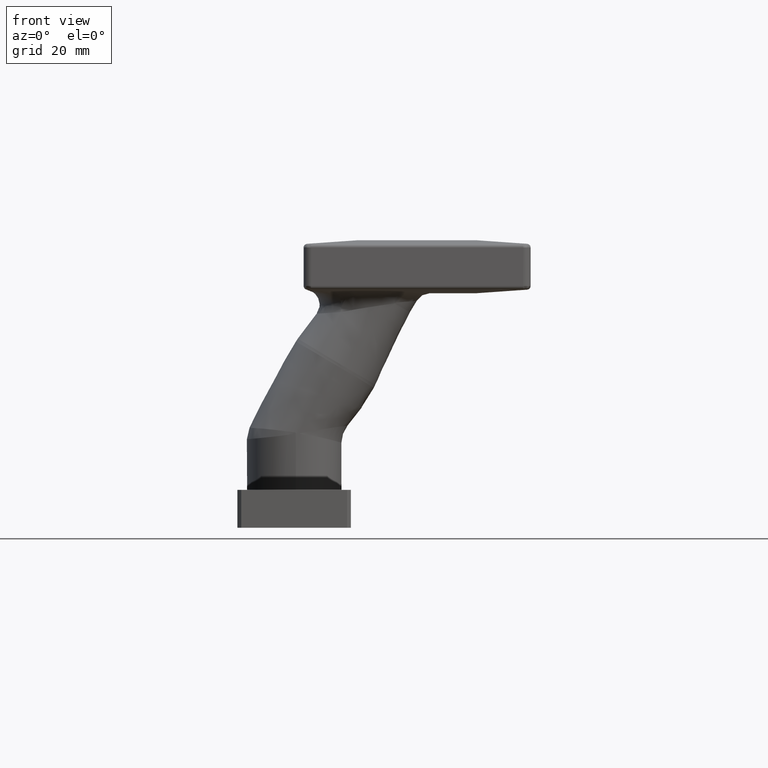
[diagram: clean part render]
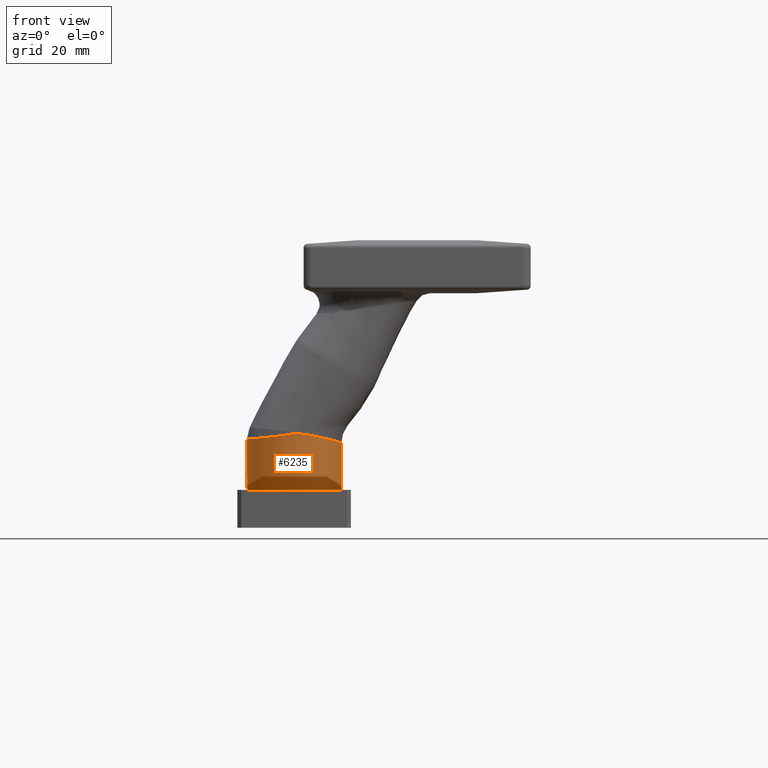
[diagram: same view with one face highlighted and labeled with its STEP entity id]
A machine part, front view. The second image highlights one B-rep face of the part: STEP entity #6235.
In plain terms, the highlighted cylindrical surface (bore or boss wall) has radius 12.5 mm, axis along (-0, -0, -1).
Its self-contained STEP definition (entity closure, byte-faithful):
#37 = CARTESIAN_POINT ( 'NONE',  ( 0.4394221528305361502, 12.49269222976936078, 14.96888034125928080 ) ) ;
#75 = CARTESIAN_POINT ( 'NONE',  ( -11.34737546167716005, -5.259853496294824460, 13.49994828489715282 ) ) ;
#116 = CARTESIAN_POINT ( 'NONE',  ( 0.3362026904691595708, 12.49590457310970493, 14.94438552654743546 ) ) ;
#169 = CARTESIAN_POINT ( 'NONE',  ( -6.960880962747370226, 10.39104581113343961, 13.86351604245229474 ) ) ;
#215 = CARTESIAN_POINT ( 'NONE',  ( -6.346169160426361699, -10.77735170642928431, 13.98465021795288976 ) ) ;
#311 = CARTESIAN_POINT ( 'NONE',  ( 1.065145046017432540, 12.45480823540932214, 15.00000000000000000 ) ) ;
#558 = CARTESIAN_POINT ( 'NONE',  ( 0.8911359943185943600, 12.47017638708890708, 14.99999999999999822 ) ) ;
#586 = CARTESIAN_POINT ( 'NONE',  ( 1.811596725879617509, -12.36953117844385908, 14.79183935128060767 ) ) ;
#630 = CARTESIAN_POINT ( 'NONE',  ( 12.25280023747248492, -2.503480351473141408, 12.55615891299707343 ) ) ;
#635 = B_SPLINE_CURVE_WITH_KNOTS ( 'NONE', 3,
 ( #12993, #11926, #8759, #2443 ),
 .UNSPECIFIED., .F., .F.,
 ( 4, 4 ),
 ( 0.000000000000000000, 1.000000000000000000 ),
 .UNSPECIFIED. ) ;
#680 = CARTESIAN_POINT ( 'NONE',  ( 12.32761375202809795, 2.104224736887985614, 12.49955625382384916 ) ) ;
#720 = CARTESIAN_POINT ( 'NONE',  ( 5.458632578745793218, -11.25150941281299666, 14.18606032731566025 ) ) ;
#764 = CARTESIAN_POINT ( 'NONE',  ( 4.777423460918092779, 11.57631958692661378, 14.26767770250191703 ) ) ;
#859 = EDGE_CURVE ( 'NONE', #7682, #11216, #12438, .T. ) ;
#930 = VERTEX_POINT ( 'NONE', #12981 ) ;
#960 = DIRECTION ( 'NONE',  ( 0.000000000000000000, 0.000000000000000000, 1.000000000000000000 ) ) ;
#1027 = FACE_OUTER_BOUND ( 'NONE', #6533, .T. ) ;
#1098 = CARTESIAN_POINT ( 'NONE',  ( -7.309281007018705978, 10.14891951959492999, 13.82746405776306098 ) ) ;
#1147 = CARTESIAN_POINT ( 'NONE',  ( -12.49600133007777636, 0.9060270195449856567, 13.39102455147147097 ) ) ;
#1197 = CARTESIAN_POINT ( 'NONE',  ( -10.00066418509675792, 7.510954229028473428, 13.56925797005724199 ) ) ;
#1286 = CARTESIAN_POINT ( 'NONE',  ( -9.809625895492132486, -7.758742297943155286, 13.64412902166731456 ) ) ;
#1389 = CARTESIAN_POINT ( 'NONE',  ( 0.7742499936232908331, -12.48253463515511541, 15.00000000000000178 ) ) ;
#1632 = CARTESIAN_POINT ( 'NONE',  ( 0.7165784863033796137, 12.48163866957477630, 14.99999999999999645 ) ) ;
#1663 = CARTESIAN_POINT ( 'NONE',  ( 12.16910607275755396, -2.883273328799599966, 12.58236610448198434 ) ) ;
#1711 = CARTESIAN_POINT ( 'NONE',  ( 8.312030487214787655, -9.367428920057436770, 13.57305765390125885 ) ) ;
#1750 = CARTESIAN_POINT ( 'NONE',  ( 10.11172106697579309, 7.388523795023085761, 13.04609077918464699 ) ) ;
#1794 = CARTESIAN_POINT ( 'NONE',  ( 5.115303343638058386, -11.41176978407921716, 14.25437404453726309 ) ) ;
#1842 = CARTESIAN_POINT ( 'NONE',  ( 12.09867594966476467, 3.234707176097694870, 12.55562027967586225 ) ) ;
#1848 = VERTEX_POINT ( 'NONE', #13191 ) ;
#1979 = CARTESIAN_POINT ( 'NONE',  ( 0.000000000000000000, 0.000000000000000000, 0.000000000000000000 ) ) ;
#2110 = EDGE_LOOP ( 'NONE', ( #7552, #2268, #10965, #11362, #3810, #13400 ) ) ;
#2165 = CARTESIAN_POINT ( 'NONE',  ( -2.866375179536066131, -12.19573466205583223, 14.39705855159752623 ) ) ;
#2211 = CARTESIAN_POINT ( 'NONE',  ( -12.04176508050080940, 3.380130707746656693, 13.41195364375132293 ) ) ;
#2228 = EDGE_CURVE ( 'NONE', #4327, #13404, #9081, .T. ) ;
#2249 = CARTESIAN_POINT ( 'NONE',  ( -4.840163674755643797, -11.53243329832776531, 14.15083027478297062 ) ) ;
#2268 = ORIENTED_EDGE ( 'NONE', *, *, #6603, .T. ) ;
#2348 = CARTESIAN_POINT ( 'NONE',  ( -1.626393897185910209, -12.40082076096091335, 14.58431109731388453 ) ) ;
#2443 = CARTESIAN_POINT ( 'NONE',  ( 1.425388852639432269, -12.41969692558407523, 15.00000000000000000 ) ) ;
#2587 = B_SPLINE_CURVE_WITH_KNOTS ( 'NONE', 3,
 ( #311, #11923, #9716, #5534 ),
 .UNSPECIFIED., .F., .F.,
 ( 4, 4 ),
 ( 0.000000000000000000, 1.000000000000000000 ),
 .UNSPECIFIED. ) ;
#2693 = CARTESIAN_POINT ( 'NONE',  ( 0.5415832341735139499, 12.48884232441322517, 15.00000000000058265 ) ) ;
#2725 = CARTESIAN_POINT ( 'NONE',  ( 10.93848433418803445, 6.098093741216809249, 12.84330248595584756 ) ) ;
#2765 = CARTESIAN_POINT ( 'NONE',  ( 10.31083467029036349, -7.076955301693121925, 13.09292966080086806 ) ) ;
#2819 = CARTESIAN_POINT ( 'NONE',  ( 11.96695991170814644, -3.632117587601210840, 12.64343535544728425 ) ) ;
#2867 = CARTESIAN_POINT ( 'NONE',  ( 2.595537599279897467, 12.23356689048097756, 14.69649840127002705 ) ) ;
#2915 = CARTESIAN_POINT ( 'NONE',  ( 2.192282984518923783, -12.30776501187365390, 14.74607094011454222 ) ) ;
#2918 = VERTEX_POINT ( 'NONE', #5588 ) ;
#3246 = CARTESIAN_POINT ( 'NONE',  ( -0.5843371628530363848, -12.48807521288684974, 14.76225024333335156 ) ) ;
#3292 = CARTESIAN_POINT ( 'NONE',  ( -12.14857118675777592, 2.972918994794615521, 13.40584714738291972 ) ) ;
#3340 = CARTESIAN_POINT ( 'NONE',  ( -12.08859314432571352, -3.289488616724840053, 13.43775530039242128 ) ) ;
#3357 = CYLINDRICAL_SURFACE ( 'NONE', #5308, 12.50000000000000000 ) ;
#3400 = EDGE_CURVE ( 'NONE', #13404, #2918, #635, .T. ) ;
#3429 = CARTESIAN_POINT ( 'NONE',  ( -5.979926730858255546, -10.98494957934449090, 14.02344280843352919 ) ) ;
#3810 = ORIENTED_EDGE ( 'NONE', *, *, #10671, .F. ) ;
#3816 = CARTESIAN_POINT ( 'NONE',  ( 1.620263659426829372, -12.39610354478045551, 14.81443103285560703 ) ) ;
#3862 = CARTESIAN_POINT ( 'NONE',  ( 10.52517614822976988, -6.754133322622460689, 13.03818961280580702 ) ) ;
#3908 = CARTESIAN_POINT ( 'NONE',  ( 11.84932888659636063, -3.998787233723352319, 12.67805237620206249 ) ) ;
#3947 = CARTESIAN_POINT ( 'NONE',  ( 11.29888460559220320, 5.402035885829569395, 12.75459536391388227 ) ) ;
#3959 = CARTESIAN_POINT ( 'NONE',  ( 0.4492440536689440989, -12.49296174146934035, 15.00000000000000000 ) ) ;
#3998 = CARTESIAN_POINT ( 'NONE',  ( 1.168111103537500250, 12.44539640922408275, 14.91620477950164592 ) ) ;
#4327 = VERTEX_POINT ( 'NONE', #13513 ) ;
#4331 = CARTESIAN_POINT ( 'NONE',  ( -9.738945575374055252, 7.847315742799391813, 13.59248912509692353 ) ) ;
#4377 = CARTESIAN_POINT ( 'NONE',  ( -8.898969191772437171, 8.788251220585292955, 13.67012819766708454 ) ) ;
#4422 = CARTESIAN_POINT ( 'NONE',  ( -12.41990182177314139, -1.643428825996768650, 13.40841333392678081 ) ) ;
#4519 = CARTESIAN_POINT ( 'NONE',  ( -9.265995626585763034, -8.400486134950503114, 13.69594608319376228 ) ) ;
#4755 = CARTESIAN_POINT ( 'NONE',  ( 1.065145046017432540, 12.45480823540932214, 15.00000000000000000 ) ) ;
#4832 = CARTESIAN_POINT ( 'NONE',  ( 7.104109038917845176, -10.31359346473780114, 13.84191493777735182 ) ) ;
#4882 = CARTESIAN_POINT ( 'NONE',  ( 6.802584103383566116, 10.51442057180164902, 13.82803239966436415 ) ) ;
#4904 = DIRECTION ( 'NONE',  ( -1.000000000000000000, 0.000000000000000000, 0.000000000000000000 ) ) ;
#4918 = CARTESIAN_POINT ( 'NONE',  ( 12.49341202680202478, 0.5601622302112807539, 12.46414415219340910 ) ) ;
#4972 = CARTESIAN_POINT ( 'NONE',  ( 11.87806972637640257, 3.969665554882339631, 12.61152236857073738 ) ) ;
#5269 = EDGE_CURVE ( 'NONE', #1848, #11216, #9768, .T. ) ;
#5308 = AXIS2_PLACEMENT_3D ( 'NONE', #6680, #5979, #4904 ) ;
#5391 = CARTESIAN_POINT ( 'NONE',  ( -10.06388416660787932, -7.425848855743903520, 13.61993107281287330 ) ) ;
#5430 = CARTESIAN_POINT ( 'NONE',  ( -0.2837846667251380794, 12.49848821911082197, 14.81080974209422152 ) ) ;
#5534 = CARTESIAN_POINT ( 'NONE',  ( 1.070590323776510866, 12.45406906832606531, 14.91311710828392378 ) ) ;
#5574 = CARTESIAN_POINT ( 'NONE',  ( -10.72564198225114218, 6.474679479566721518, 13.50692122822109376 ) ) ;
#5588 = CARTESIAN_POINT ( 'NONE',  ( 1.425388852639432269, -12.41969692558407523, 15.00000000000000000 ) ) ;
#5904 = CARTESIAN_POINT ( 'NONE',  ( 1.313340031774336891, 12.43090817907855872, 14.90494769763810545 ) ) ;
#5979 = DIRECTION ( 'NONE',  ( -0.000000000000000000, -0.000000000000000000, -1.000000000000000000 ) ) ;
#6046 = CARTESIAN_POINT ( 'NONE',  ( 1.553256349397777569, 12.40349387441341200, 14.87384538227268926 ) ) ;
#6084 = CARTESIAN_POINT ( 'NONE',  ( 8.604770291696503648, 9.098711749102092128, 13.41010265415815716 ) ) ;
#6235 = ADVANCED_FACE ( 'NONE', ( #12781, #1027 ), #3357, .T. ) ;
#6392 = AXIS2_PLACEMENT_3D ( 'NONE', #1979, #960, #10453 ) ;
#6460 = CARTESIAN_POINT ( 'NONE',  ( -12.50373913701812079, -0.7921122362723947985, 13.39886075482806937 ) ) ;
#6509 = CARTESIAN_POINT ( 'NONE',  ( -9.188583031402274059, 8.485126231371646455, 13.64288653964881171 ) ) ;
#6533 = EDGE_LOOP ( 'NONE', ( #10209 ) ) ;
#6552 = CARTESIAN_POINT ( 'NONE',  ( -10.53783763164179277, -6.736391749030625320, 13.57496866320164486 ) ) ;
#6593 = CARTESIAN_POINT ( 'NONE',  ( -1.520998222690753021, 12.41405803724984658, 14.58089037198061710 ) ) ;
#6603 = EDGE_CURVE ( 'NONE', #7682, #4327, #2587, .T. ) ;
#6680 = CARTESIAN_POINT ( 'NONE',  ( 0.000000000000000000, 0.000000000000000000, 15.00000000000000000 ) ) ;
#6881 = EDGE_CURVE ( 'NONE', #930, #930, #8488, .T. ) ;
#6963 = CARTESIAN_POINT ( 'NONE',  ( 8.864759467629125922, -8.845525200801194643, 13.44529599607749581 ) ) ;
#7015 = CARTESIAN_POINT ( 'NONE',  ( 9.644575833574187129, 7.988165262220595864, 13.16027382915530630 ) ) ;
#7057 = CARTESIAN_POINT ( 'NONE',  ( 1.119224478972323578, 12.44988832581756988, 14.91792830468525466 ) ) ;
#7092 = CARTESIAN_POINT ( 'NONE',  ( 1.070590323776510866, 12.45406906832606531, 14.91311710828392378 ) ) ;
#7140 = CARTESIAN_POINT ( 'NONE',  ( 2.966945582771371104, 12.14872429121453301, 14.62661074719474996 ) ) ;
#7199 = CARTESIAN_POINT ( 'NONE',  ( 0.2475326381670690523, -12.49917810218286895, 14.93173458021840361 ) ) ;
#7472 = CARTESIAN_POINT ( 'NONE',  ( -3.670074593468787949, -11.97820358791697082, 14.29172423840132744 ) ) ;
#7521 = CARTESIAN_POINT ( 'NONE',  ( -2.751221781888081530, 12.22169664528651722, 14.37585539863816209 ) ) ;
#7552 = ORIENTED_EDGE ( 'NONE', *, *, #859, .F. ) ;
#7566 = CARTESIAN_POINT ( 'NONE',  ( -11.13432373939951248, 5.743204360194103408, 13.47465447788037984 ) ) ;
#7664 = CARTESIAN_POINT ( 'NONE',  ( 0.1297115697938243106, 12.49975352789023475, 14.89718325996737214 ) ) ;
#7682 = VERTEX_POINT ( 'NONE', #13437 ) ;
#8038 = CARTESIAN_POINT ( 'NONE',  ( 1.425388852639432269, -12.41969692558407523, 15.00000000000000000 ) ) ;
#8067 = CARTESIAN_POINT ( 'NONE',  ( 0.5415832341735139499, 12.48884232441322517, 15.00000000000058265 ) ) ;
#8082 = CARTESIAN_POINT ( 'NONE',  ( 11.44846045188195660, -5.076448649888818387, 12.79278253124232201 ) ) ;
#8130 = CARTESIAN_POINT ( 'NONE',  ( 2.029606523079213964, 12.33561676345213343, 14.79666174931908884 ) ) ;
#8175 = CARTESIAN_POINT ( 'NONE',  ( 1.265123090272721518, 12.43590925101153033, 14.90993082311269902 ) ) ;
#8488 = CIRCLE ( 'NONE', #6392, 12.50000000000000000 ) ;
#8567 = CARTESIAN_POINT ( 'NONE',  ( -11.78534762269603675, 4.187477912494995458, 13.42820092894936401 ) ) ;
#8613 = CARTESIAN_POINT ( 'NONE',  ( -8.291471786210527384, 9.363573453052456586, 13.72878686783821323 ) ) ;
#8663 = CARTESIAN_POINT ( 'NONE',  ( -7.973587139241584687, 9.635770046431190394, 13.76019896560114653 ) ) ;
#8706 = CARTESIAN_POINT ( 'NONE',  ( -12.40657638626081294, 1.740970789302072275, 13.39279157618945248 ) ) ;
#8759 = CARTESIAN_POINT ( 'NONE',  ( 1.425159962234739952, -12.41849101502076813, 14.93829274951103336 ) ) ;
#8886 = CARTESIAN_POINT ( 'NONE',  ( 0.4492440536689440989, -12.49296174146934035, 15.00000000000000000 ) ) ;
#9076 = CARTESIAN_POINT ( 'NONE',  ( 2.381198074626683869, -12.27260060886922055, 14.71964714450052547 ) ) ;
#9081 = B_SPLINE_CURVE_WITH_KNOTS ( 'NONE', 3,
 ( #7092, #7057, #3998, #8175, #5904, #13459, #6046, #10266, #8130, #2867, #7140, #13275, #764, #9175, #4882, #13318, #6084, #7015, #1750, #2725, #3947, #4972, #1842, #680, #11262, #12246, #4918, #9219, #10214, #630, #1663, #2819, #3908, #8082, #10131, #3862, #2765, #13409, #9262, #6963, #1711, #4832, #12337, #720, #1794, #9129, #10176, #11306, #12385, #9076, #2915, #586, #3816, #12194 ),
 .UNSPECIFIED., .F., .F.,
 ( 4, 2, 2, 2, 2, 2, 2, 2, 2, 2, 2, 2, 2, 2, 2, 2, 2, 2, 2, 2, 2, 2, 2, 2, 2, 2, 4 ),
 ( 0.000000000000000000, 0.0001467387076203059281, 0.0002934774152406118561, 0.0005869548304812255554, 0.001173909660962453713, 0.002347819321924912630, 0.004695638643849828729, 0.007043457965774745262, 0.009391277287699664397, 0.01173909660962458093, 0.01408691593154950093, 0.01643473525347442094, 0.01760864491443688007, 0.01878255457539934267, 0.02113037389732426094, 0.02230428355828672007, 0.02347819321924917921, 0.02582601254117410094, 0.02699992220213656702, 0.02817383186309902615, 0.03052165118502395483, 0.03286947050694888350, 0.03404338016791134958, 0.03521728982887380871, 0.03639119948983627478, 0.03697815432031750782, 0.03756510915079874086 ),
 .UNSPECIFIED. ) ;
#9129 = CARTESIAN_POINT ( 'NONE',  ( 4.411634569761538671, -11.70180748111773816, 14.38698346332368239 ) ) ;
#9175 = CARTESIAN_POINT ( 'NONE',  ( 6.153111717725718854, 10.90752796433627481, 13.97317670382107657 ) ) ;
#9219 = CARTESIAN_POINT ( 'NONE',  ( 12.50954133192496620, -0.5982297612522795571, 12.46868359069993204 ) ) ;
#9262 = CARTESIAN_POINT ( 'NONE',  ( 9.619330401281507292, -7.991420509221974555, 13.26441356579817210 ) ) ;
#9585 = CARTESIAN_POINT ( 'NONE',  ( -5.887092673463036441, 11.05906538367988468, 13.97767461737514516 ) ) ;
#9633 = CARTESIAN_POINT ( 'NONE',  ( -5.224254217093493580, -11.36379376979161115, 14.10682562119580652 ) ) ;
#9675 = CARTESIAN_POINT ( 'NONE',  ( -11.84188215663541222, -4.090938971848753880, 13.45733707543738866 ) ) ;
#9713 = CARTESIAN_POINT ( 'NONE',  ( -8.063859482705659332, -9.588278545171883493, 13.81135733455132808 ) ) ;
#9716 = CARTESIAN_POINT ( 'NONE',  ( 1.068767339604088873, 12.45422577768785821, 14.94207803789357669 ) ) ;
#9764 = CARTESIAN_POINT ( 'NONE',  ( -10.75753303714190245, -6.379828296938298671, 13.55420312462127441 ) ) ;
#9768 = B_SPLINE_CURVE_WITH_KNOTS ( 'NONE', 3,
 ( #3959, #7199, #10364, #13559, #3246, #10809, #2348, #2165, #7472, #2249, #9633, #3429, #215, #11872, #9713, #10635, #4519, #1286, #5391, #6552, #9764, #11681, #75, #9675, #3340, #4422, #6460, #1147, #8706, #3292, #2211, #8567, #10676, #7566, #5574, #1197, #4331, #6509, #4377, #8613, #8663, #1098, #169, #9585, #10722, #12761, #7521, #6593, #12946, #11734, #5430, #12809, #7664, #116, #37, #11781 ),
 .UNSPECIFIED., .F., .F.,
 ( 4, 2, 2, 2, 2, 2, 2, 2, 2, 2, 2, 2, 2, 2, 2, 2, 2, 2, 2, 2, 2, 2, 2, 2, 2, 2, 2, 4 ),
 ( 0.000000000000000000, 0.0006386211628317266416, 0.001277242325663453283, 0.002554484651326907000, 0.005108969302653813133, 0.006386211628317266416, 0.007663453953980718832, 0.01021793860530762627, 0.01149518093097107868, 0.01277242325663453283, 0.01404966558229798698, 0.01532690790796143766, 0.01788139255928834770, 0.02043587721061525600, 0.02299036186194216777, 0.02426760418760562019, 0.02554484651326907607, 0.02809933116459598437, 0.02937657349025944026, 0.03065381581592288920, 0.03193105814158634509, 0.03320830046724979751, 0.03576278511857670234, 0.03831726976990360717, 0.03959451209556705958, 0.04023313325839879273, 0.04055244383981465583, 0.04087175442123051200 ),
 .UNSPECIFIED. ) ;
#10131 = CARTESIAN_POINT ( 'NONE',  ( 11.11764872831086315, -5.765282848046918041, 12.88365783977221746 ) ) ;
#10176 = CARTESIAN_POINT ( 'NONE',  ( 4.049972237886830584, -11.83195999604080306, 14.45187166330256368 ) ) ;
#10209 = ORIENTED_EDGE ( 'NONE', *, *, #6881, .T. ) ;
#10214 = CARTESIAN_POINT ( 'NONE',  ( 12.44922938580738858, -1.364110632617792529, 12.49224200537388896 ) ) ;
#10266 = CARTESIAN_POINT ( 'NONE',  ( 1.839507219285328121, 12.36540640288134973, 14.82946265948752362 ) ) ;
#10364 = CARTESIAN_POINT ( 'NONE',  ( 0.03891660922014416463, -12.50166328054395137, 14.88714122642196358 ) ) ;
#10453 = DIRECTION ( 'NONE',  ( 1.000000000000000000, 0.000000000000000000, 0.000000000000000000 ) ) ;
#10586 = CARTESIAN_POINT ( 'NONE',  ( 1.424981042584545499, -12.41851154640823651, 14.81487860487723474 ) ) ;
#10635 = CARTESIAN_POINT ( 'NONE',  ( -8.974812577519820422, -8.710939559114640574, 13.72373994160657240 ) ) ;
#10671 = EDGE_CURVE ( 'NONE', #1848, #2918, #12538, .T. ) ;
#10676 = CARTESIAN_POINT ( 'NONE',  ( -11.63613951157240756, 4.585536787705501105, 13.43832686061923454 ) ) ;
#10722 = CARTESIAN_POINT ( 'NONE',  ( -5.137023365990169843, 11.42617892439341531, 14.06013666164444942 ) ) ;
#10809 = CARTESIAN_POINT ( 'NONE',  ( -1.208580422414681665, -12.44842251584498172, 14.65122482579026553 ) ) ;
#10965 = ORIENTED_EDGE ( 'NONE', *, *, #2228, .T. ) ;
#11165 = CARTESIAN_POINT ( 'NONE',  ( 1.099901715077584718, -12.45826487618422185, 15.00000000000000178 ) ) ;
#11216 = VERTEX_POINT ( 'NONE', #8067 ) ;
#11262 = CARTESIAN_POINT ( 'NONE',  ( 12.38682275287745682, 1.722690094655649595, 12.48558028789942576 ) ) ;
#11306 = CARTESIAN_POINT ( 'NONE',  ( 3.315823058638972309, -12.05831123828548712, 14.57676244335832472 ) ) ;
#11362 = ORIENTED_EDGE ( 'NONE', *, *, #3400, .T. ) ;
#11681 = CARTESIAN_POINT ( 'NONE',  ( -11.16186177441148075, -5.642656100857631252, 13.51667686156098824 ) ) ;
#11734 = CARTESIAN_POINT ( 'NONE',  ( -0.4904461579691831719, 12.49208448155115114, 14.77051827916603344 ) ) ;
#11781 = CARTESIAN_POINT ( 'NONE',  ( 0.5415832341735139499, 12.48884232441322517, 15.00000000000058265 ) ) ;
#11872 = CARTESIAN_POINT ( 'NONE',  ( -7.406208220061369474, -10.10439365169321491, 13.87530530285699371 ) ) ;
#11923 = CARTESIAN_POINT ( 'NONE',  ( 1.066944321023793441, 12.45438208678632996, 14.97103896750322960 ) ) ;
#11926 = CARTESIAN_POINT ( 'NONE',  ( 1.425070502465103583, -12.41850128119783747, 14.87658567719413405 ) ) ;
#12194 = CARTESIAN_POINT ( 'NONE',  ( 1.424981042584545499, -12.41851154640823651, 14.81487860487723474 ) ) ;
#12246 = CARTESIAN_POINT ( 'NONE',  ( 12.46991528908200486, 0.9498693365648462894, 12.46782597708962115 ) ) ;
#12337 = CARTESIAN_POINT ( 'NONE',  ( 6.464338499386816927, -10.72543064640311350, 13.98007899975057278 ) ) ;
#12385 = CARTESIAN_POINT ( 'NONE',  ( 2.944641829033251224, -12.15427514911519147, 14.63691474550120475 ) ) ;
#12438 = B_SPLINE_CURVE_WITH_KNOTS ( 'NONE', 3,
 ( #4755, #558, #1632, #2693 ),
 .UNSPECIFIED., .F., .F.,
 ( 4, 4 ),
 ( 0.1713315495344547024, 0.1781030204161572206 ),
 .UNSPECIFIED. ) ;
#12538 = B_SPLINE_CURVE_WITH_KNOTS ( 'NONE', 3,
 ( #8886, #1389, #11165, #8038 ),
 .UNSPECIFIED., .F., .F.,
 ( 4, 4 ),
 ( 0.6908389210244973988, 0.7033330823250852903 ),
 .UNSPECIFIED. ) ;
#12761 = CARTESIAN_POINT ( 'NONE',  ( -3.572371712891134532, 12.00769479208713797, 14.25630980680104543 ) ) ;
#12781 = FACE_OUTER_BOUND ( 'NONE', #2110, .T. ) ;
#12809 = CARTESIAN_POINT ( 'NONE',  ( 0.02631970596790121283, 12.50039969953592411, 14.87512529889641399 ) ) ;
#12946 = CARTESIAN_POINT ( 'NONE',  ( -1.109489502947784256, 12.45752309069342445, 14.65347183219115124 ) ) ;
#12981 = CARTESIAN_POINT ( 'NONE',  ( 12.50000000000000000, 0.000000000000000000, 0.000000000000000000 ) ) ;
#12993 = CARTESIAN_POINT ( 'NONE',  ( 1.424981042584545499, -12.41851154640823651, 14.81487860487723474 ) ) ;
#13191 = CARTESIAN_POINT ( 'NONE',  ( 0.4492440536689440989, -12.49296174146934035, 15.00000000000000000 ) ) ;
#13275 = CARTESIAN_POINT ( 'NONE',  ( 4.065170408231348453, 11.84489179065517206, 14.41416948554976507 ) ) ;
#13318 = CARTESIAN_POINT ( 'NONE',  ( 8.026915610444987692, 9.612326265120588076, 13.54688501930819911 ) ) ;
#13400 = ORIENTED_EDGE ( 'NONE', *, *, #5269, .T. ) ;
#13404 = VERTEX_POINT ( 'NONE', #10586 ) ;
#13409 = CARTESIAN_POINT ( 'NONE',  ( 9.858354125112185784, -7.694768475016503295, 13.20592247342080228 ) ) ;
#13437 = CARTESIAN_POINT ( 'NONE',  ( 1.065145046017432540, 12.45480823540932214, 15.00000000000000000 ) ) ;
#13459 = CARTESIAN_POINT ( 'NONE',  ( 1.457603404023099181, 12.41510181591569584, 14.88795076116831062 ) ) ;
#13513 = CARTESIAN_POINT ( 'NONE',  ( 1.070590323776510866, 12.45406906832606531, 14.91311710828392378 ) ) ;
#13559 = CARTESIAN_POINT ( 'NONE',  ( -0.3762529240891049342, -12.49606070006417902, 14.80096068388743902 ) ) ;